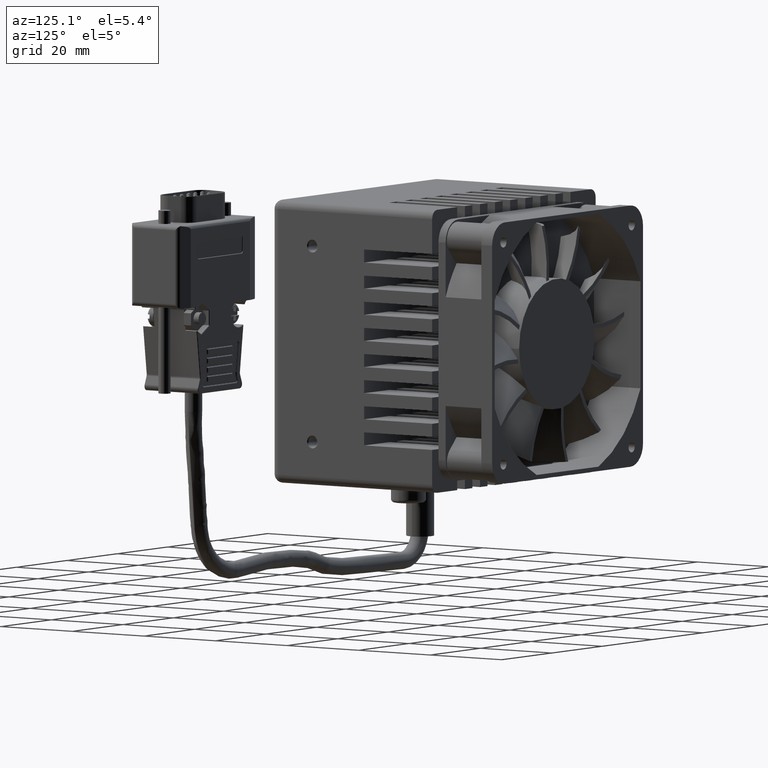
[diagram: clean part render]
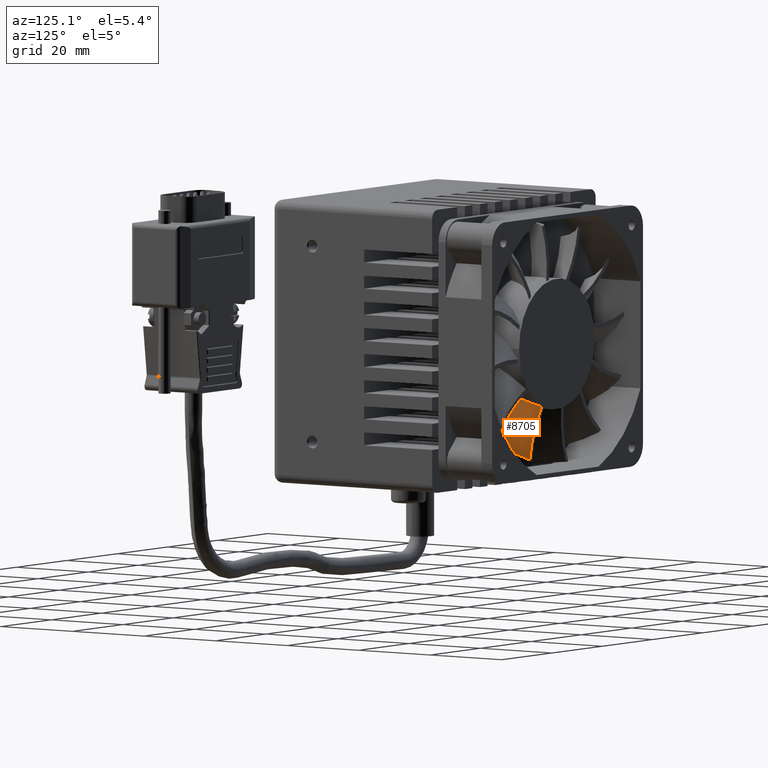
[diagram: same view with one face highlighted and labeled with its STEP entity id]
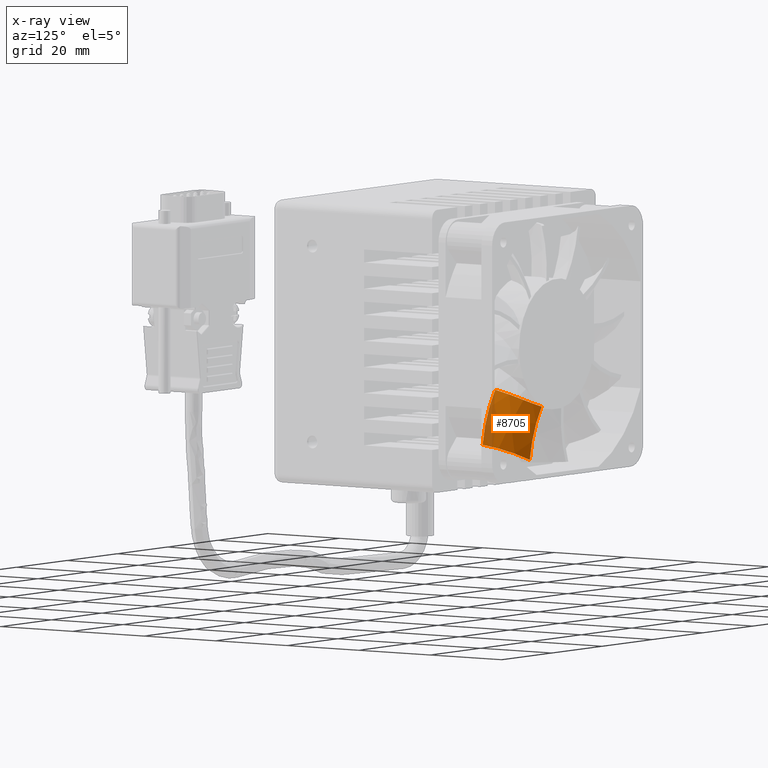
[diagram: x-ray of the same camera — body ghosted, the highlighted face saturated]
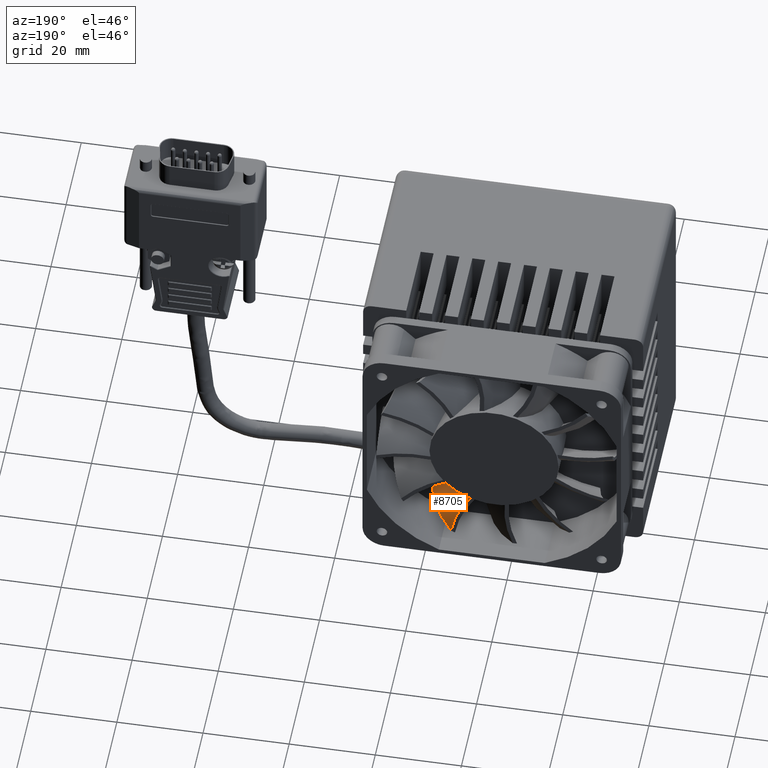
[diagram: same view with one face highlighted and labeled with its STEP entity id]
A machine part, auxiliary view. The second image highlights one B-rep face of the part: STEP entity #8705.
The next image is the same camera in x-ray: the body ghosted, the highlighted face saturated — about 15% of this face is hidden behind the body in this view.
A second angle (auxiliary view) of the same face is appended — the face is thin or edge-on in the first view.
In plain terms, the highlighted face is a freeform B-spline surface patch.
Its self-contained STEP definition (entity closure, byte-faithful):
#1556 = DIRECTION ( 'NONE',  ( -2.012279232302584967E-16, 1.000000000000000000, 1.945560085178034925E-17 ) ) ;
#1671 = CARTESIAN_POINT ( 'NONE',  ( 9.238297530193930740, 52.32644044686465890, -11.82115697225820838 ) ) ;
#1802 = CARTESIAN_POINT ( 'NONE',  ( 14.89436359364839646, 47.49662868095442292, -15.01423450690808536 ) ) ;
#3567 = CARTESIAN_POINT ( 'NONE',  ( 10.04995975389110008, 56.50000000000000000, -25.90362674474250326 ) ) ;
#3983 = CARTESIAN_POINT ( 'NONE',  ( 10.23208486818320928, 50.15205696380206746, -10.96837333622786836 ) ) ;
#4284 = CARTESIAN_POINT ( 'NONE',  ( 15.98297278398180055, 47.49662868095440160, -22.47820007843260015 ) ) ;
#4311 = CARTESIAN_POINT ( 'NONE',  ( 10.04995975389110008, 56.50000000000000000, -25.90362674474250326 ) ) ;
#4385 = CARTESIAN_POINT ( 'NONE',  ( 10.50123528698672004, 49.36316413934359559, -10.71142774284466803 ) ) ;
#4753 = FACE_OUTER_BOUND ( 'NONE', #6018, .T. ) ;
#5240 = CARTESIAN_POINT ( 'NONE',  ( 7.460996988804331487, 54.72497092530522877, -13.01312787050031261 ) ) ;
#6018 = EDGE_LOOP ( 'NONE', ( #17267, #15634, #28014, #40026 ) ) ;
#6217 = CARTESIAN_POINT ( 'NONE',  ( 8.113320308482061094, 53.97991440974071509, -12.61745266001334187 ) ) ;
#6259 =( BOUNDED_SURFACE ( )  B_SPLINE_SURFACE ( 2, 2, ( 
 ( #11287, #17608, #4311 ),
 ( #37169, #20349, #8145 ),
 ( #27086, #1802, #24130 ) ),
 .UNSPECIFIED., .F., .F., .F. ) 
 B_SPLINE_SURFACE_WITH_KNOTS ( ( 3, 3 ),
 ( 3, 3 ),
 ( -8.961818565167199966E-17, 0.7351897659899490067 ),
 ( 2.942946659296869427E-17, 0.5360013537046279808 ),
 .UNSPECIFIED. ) 
 GEOMETRIC_REPRESENTATION_ITEM ( )  RATIONAL_B_SPLINE_SURFACE ( (
 ( 1.000000000000000000, 0.9643022521094869459, 1.000000000000000000),
 ( 0.9331943756288320069, 0.8998814380747889308, 0.9331943756288320069),
 ( 1.000000000000000000, 0.9643022521094869459, 1.000000000000000000) ) ) 
 REPRESENTATION_ITEM ( '' )  SURFACE ( )  );
#7139 = CARTESIAN_POINT ( 'NONE',  ( 10.33274144447740994, 49.87220901215150803, -10.87380550508089705 ) ) ;
#7678 = DIRECTION ( 'NONE',  ( 0.7770512861028666673, 2.526162766536880615E-16, 0.6294372873971487703 ) ) ;
#8145 = CARTESIAN_POINT ( 'NONE',  ( 14.51780248295538733, 53.31744203162614326, -23.32411654522049815 ) ) ;
#8530 = CIRCLE ( 'NONE', #24667, 27.46811882363290991 ) ;
#8705 = ADVANCED_FACE ( 'NONE', ( #4753 ), #6259, .T. ) ;
#8876 = EDGE_CURVE ( 'NONE', #36150, #14810, #11494, .T. ) ;
#8960 = DIRECTION ( 'NONE',  ( 0.4546872257092007263, 0.8510852106881635626, 0.2625137918753118194 ) ) ;
#11287 = CARTESIAN_POINT ( 'NONE',  ( 4.213546702080329887, 56.50000000000000000, -12.57841467480809960 ) ) ;
#11494 = CIRCLE ( 'NONE', #14146, 15.74062741312680735 ) ;
#11539 = B_SPLINE_CURVE_WITH_KNOTS ( 'NONE', 3,
 ( #36407, #29471, #20416, #39785, #4385, #17241, #7139, #32823, #3983, #29681, #13651, #35066, #14933, #1671, #11762, #40616, #6217, #25593, #37653, #28745, #27789, #5240, #31908, #37234, #24618 ),
 .UNSPECIFIED., .F., .F.,
 ( 4, 2, 2, 1, 2, 2, 2, 2, 2, 2, 2, 2, 4 ),
 ( 0.000000000000000000, 0.1250000000000029698, 0.1875000000000044409, 0.2187500000000043854, 0.2343750000000043021, 0.2500000000000041633, 0.3750000000000043299, 0.5000000000000044409, 0.6250000000000046629, 0.6875000000000047740, 0.7187500000000048850, 0.7500000000000048850, 1.000000000000000000 ),
 .UNSPECIFIED. ) ;
#11622 = VERTEX_POINT ( 'NONE', #26264 ) ;
#11762 = CARTESIAN_POINT ( 'NONE',  ( 8.769490426569074515, 53.09001648417462604, -12.17300008533104005 ) ) ;
#11873 = VERTEX_POINT ( 'NONE', #23934 ) ;
#13651 = CARTESIAN_POINT ( 'NONE',  ( 10.02822978645064644, 50.69515337447914050, -11.15721904739210224 ) ) ;
#14146 = AXIS2_PLACEMENT_3D ( 'NONE', #28516, #27908, #8960 ) ;
#14491 = EDGE_CURVE ( 'NONE', #11622, #11873, #11539, .T. ) ;
#14810 = VERTEX_POINT ( 'NONE', #4284 ) ;
#14933 = CARTESIAN_POINT ( 'NONE',  ( 9.454688445402966934, 51.92964279122793414, -11.64797290206331759 ) ) ;
#15634 = ORIENTED_EDGE ( 'NONE', *, *, #33622, .T. ) ;
#17241 = CARTESIAN_POINT ( 'NONE',  ( 10.39007612599202623, 49.70302678317204226, -10.81891745078035605 ) ) ;
#17267 = ORIENTED_EDGE ( 'NONE', *, *, #14491, .F. ) ;
#17608 = CARTESIAN_POINT ( 'NONE',  ( 8.961350563557710203, 56.49999999999998579, -18.43966117321801335 ) ) ;
#17803 = CIRCLE ( 'NONE', #21206, 27.46811882363290991 ) ;
#20349 = CARTESIAN_POINT ( 'NONE',  ( 13.42919329262200456, 53.31744203162610773, -15.86015097369599758 ) ) ;
#20416 = CARTESIAN_POINT ( 'NONE',  ( 10.76554169057703092, 48.44288068768513256, -10.44686825617136883 ) ) ;
#20516 = DIRECTION ( 'NONE',  ( 0.7770512861028666673, 2.526162766536880615E-16, 0.6294372873971487703 ) ) ;
#21206 = AXIS2_PLACEMENT_3D ( 'NONE', #23690, #40529, #7678 ) ;
#23690 = CARTESIAN_POINT ( 'NONE',  ( -17.13059035664999996, 56.50000000000000000, -29.86787287705820049 ) ) ;
#23934 = CARTESIAN_POINT ( 'NONE',  ( 5.310658787132029879, 56.50000000000000000, -14.02843195965449929 ) ) ;
#24130 = CARTESIAN_POINT ( 'NONE',  ( 15.98297278398180055, 47.49662868095440160, -22.47820007843260015 ) ) ;
#24618 = CARTESIAN_POINT ( 'NONE',  ( 5.310658787132029879, 56.50000000000000000, -14.02843195965449929 ) ) ;
#24667 = AXIS2_PLACEMENT_3D ( 'NONE', #37134, #1556, #20516 ) ;
#25593 = CARTESIAN_POINT ( 'NONE',  ( 7.973882710095466564, 54.15062963123340012, -12.70613011655850855 ) ) ;
#26264 = CARTESIAN_POINT ( 'NONE',  ( 10.97331740256220023, 47.49662868095440160, -10.22674460337329982 ) ) ;
#27086 = CARTESIAN_POINT ( 'NONE',  ( 10.14655973217100104, 47.49662868095440160, -9.152988008498251560 ) ) ;
#27208 = EDGE_CURVE ( 'NONE', #11873, #36150, #17803, .T. ) ;
#27789 = CARTESIAN_POINT ( 'NONE',  ( 7.535657154672859015, 54.64562332605186157, -12.97001647919873690 ) ) ;
#27908 = DIRECTION ( 'NONE',  ( 0.4999999995929081953, -5.735563881707031546E-17, -0.8660254040194733660 ) ) ;
#28014 = ORIENTED_EDGE ( 'NONE', *, *, #8876, .F. ) ;
#28516 = CARTESIAN_POINT ( 'NONE',  ( 2.892897544494310136, 43.10338480173509623, -30.03575853345889612 ) ) ;
#28745 = CARTESIAN_POINT ( 'NONE',  ( 7.684479909351404459, 54.48297961969309711, -12.88239980540247132 ) ) ;
#29471 = CARTESIAN_POINT ( 'NONE',  ( 10.87761370543821648, 47.97374984663860431, -10.32943486169792635 ) ) ;
#29681 = CARTESIAN_POINT ( 'NONE',  ( 10.21083511171028668, 50.20951158002405634, -10.98815775483929791 ) ) ;
#31908 = CARTESIAN_POINT ( 'NONE',  ( 6.761462264273572664, 55.44739452567675642, -13.40868758189766474 ) ) ;
#32823 = CARTESIAN_POINT ( 'NONE',  ( 10.27271121681355126, 50.04026760172881438, -10.93033296146697708 ) ) ;
#33622 = EDGE_CURVE ( 'NONE', #11622, #14810, #8530, .T. ) ;
#35066 = CARTESIAN_POINT ( 'NONE',  ( 9.849206528568863916, 51.11472389585736664, -11.31633938535047079 ) ) ;
#36150 = VERTEX_POINT ( 'NONE', #3567 ) ;
#36407 = CARTESIAN_POINT ( 'NONE',  ( 10.97331740256220023, 47.49662868095440160, -10.22674460337329982 ) ) ;
#37134 = CARTESIAN_POINT ( 'NONE',  ( -11.19757732655940075, 47.49662868095440160, -26.44244621074830093 ) ) ;
#37169 = CARTESIAN_POINT ( 'NONE',  ( 8.681389431144614477, 53.31744203162614326, -9.998904475286156668 ) ) ;
#37234 = CARTESIAN_POINT ( 'NONE',  ( 6.071102237931619072, 56.01231445426496691, -13.74055547383486697 ) ) ;
#37653 = CARTESIAN_POINT ( 'NONE',  ( 7.757707774730506323, 54.40064882712196237, -12.83842307626619572 ) ) ;
#39785 = CARTESIAN_POINT ( 'NONE',  ( 10.57066215376172558, 49.13459146229853758, -10.64281859726865775 ) ) ;
#40026 = ORIENTED_EDGE ( 'NONE', *, *, #27208, .F. ) ;
#40529 = DIRECTION ( 'NONE',  ( -2.012279232302584967E-16, 1.000000000000000000, 1.945560085178034925E-17 ) ) ;
#40616 = CARTESIAN_POINT ( 'NONE',  ( 8.517963298760172108, 53.45566147256177203, -12.35105718000674990 ) ) ;